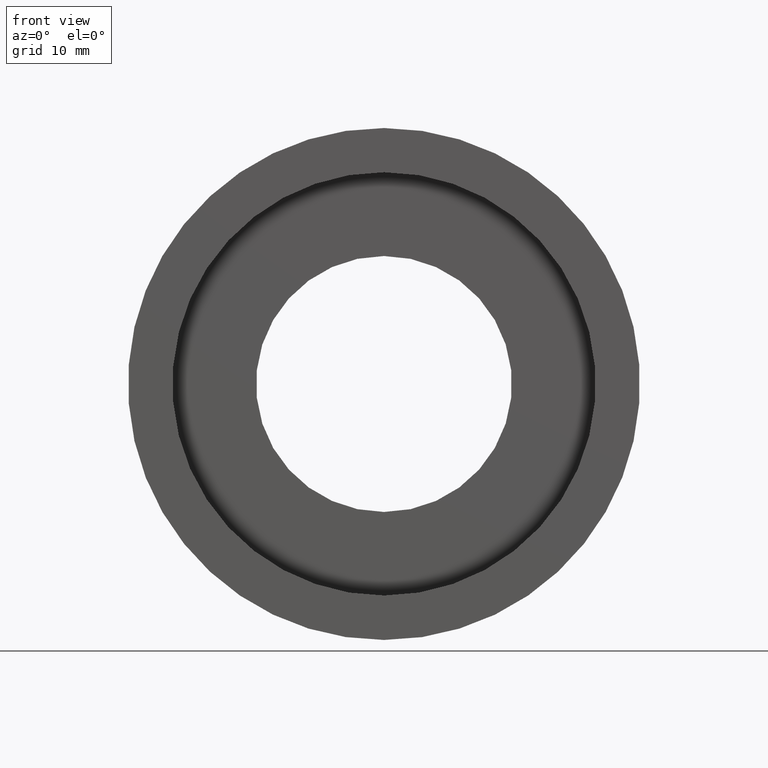
[diagram: clean part render]
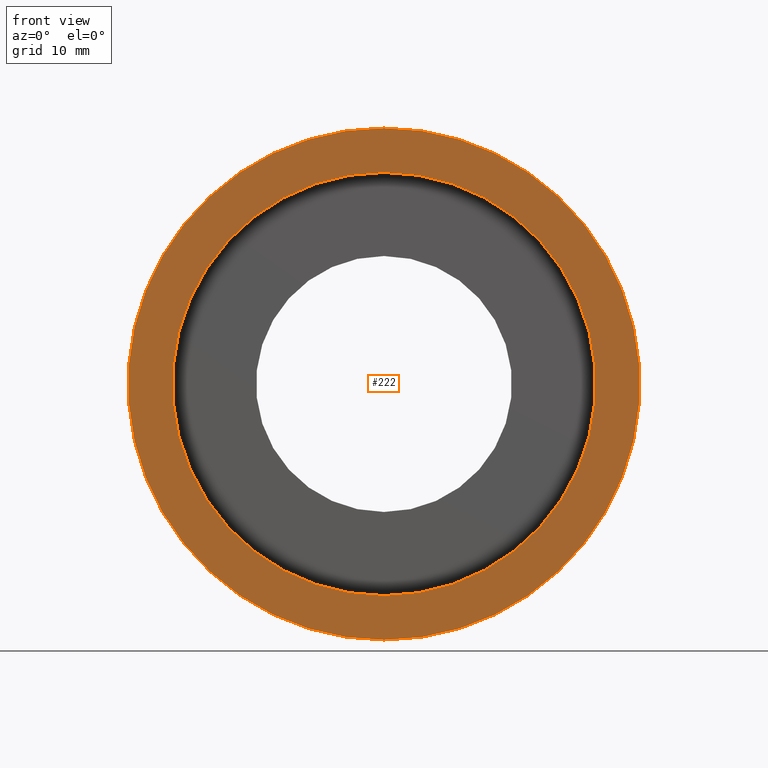
[diagram: same view with one face highlighted and labeled with its STEP entity id]
A machine part, front view. The second image highlights one B-rep face of the part: STEP entity #222.
In plain terms, the highlighted planar face has unit normal (0, 1, 0).
Its self-contained STEP definition (entity closure, byte-faithful):
#4 = DIRECTION ( 'NONE',  ( 0.000000000000000000, 0.000000000000000000, -1.000000000000000000 ) ) ;
#5 = CIRCLE ( 'NONE', #19, 21.00000000000000000 ) ;
#17 = CIRCLE ( 'NONE', #253, 25.39999999999999503 ) ;
#19 = AXIS2_PLACEMENT_3D ( 'NONE', #139, #292, #4 ) ;
#27 = ORIENTED_EDGE ( 'NONE', *, *, #30, .T. ) ;
#30 = EDGE_CURVE ( 'NONE', #66, #152, #42, .T. ) ;
#38 = EDGE_LOOP ( 'NONE', ( #365, #243 ) ) ;
#42 = CIRCLE ( 'NONE', #147, 25.39999999999999503 ) ;
#44 = CARTESIAN_POINT ( 'NONE',  ( 0.000000000000000000, -5.551145924324170024E-17, 0.000000000000000000 ) ) ;
#66 = VERTEX_POINT ( 'NONE', #161 ) ;
#72 = CARTESIAN_POINT ( 'NONE',  ( 0.000000000000000000, 5.976924914303601485E-15, 0.000000000000000000 ) ) ;
#73 = CARTESIAN_POINT ( 'NONE',  ( 0.000000000000000000, -5.551145924324170024E-17, -25.39999999999999503 ) ) ;
#75 = FACE_BOUND ( 'NONE', #38, .T. ) ;
#76 = CIRCLE ( 'NONE', #286, 21.00000000000000000 ) ;
#106 = DIRECTION ( 'NONE',  ( -0.000000000000000000, -1.000000000000000000, -0.000000000000000000 ) ) ;
#125 = EDGE_CURVE ( 'NONE', #152, #66, #17, .T. ) ;
#137 = CARTESIAN_POINT ( 'NONE',  ( 0.000000000000000000, 1.200936128785044448E-14, -21.00000000000000000 ) ) ;
#139 = CARTESIAN_POINT ( 'NONE',  ( 0.000000000000000000, 1.200936128785044448E-14, 0.000000000000000000 ) ) ;
#142 = EDGE_CURVE ( 'NONE', #274, #259, #76, .T. ) ;
#147 = AXIS2_PLACEMENT_3D ( 'NONE', #342, #374, #346 ) ;
#152 = VERTEX_POINT ( 'NONE', #73 ) ;
#161 = CARTESIAN_POINT ( 'NONE',  ( 3.110602869834276471E-15, -5.551145924324170024E-17, 25.39999999999999503 ) ) ;
#167 = DIRECTION ( 'NONE',  ( 0.000000000000000000, -0.000000000000000000, 1.000000000000000000 ) ) ;
#169 = DIRECTION ( 'NONE',  ( 0.000000000000000000, 1.000000000000000000, 0.000000000000000000 ) ) ;
#172 = DIRECTION ( 'NONE',  ( 0.000000000000000000, 0.000000000000000000, -1.000000000000000000 ) ) ;
#199 = CARTESIAN_POINT ( 'NONE',  ( 2.571758278209441661E-15, 1.200936128785044448E-14, 21.00000000000000000 ) ) ;
#222 = ADVANCED_FACE ( 'NONE', ( #75, #354 ), #357, .F. ) ;
#230 = CARTESIAN_POINT ( 'NONE',  ( 0.000000000000000000, 1.200936128785044448E-14, 0.000000000000000000 ) ) ;
#243 = ORIENTED_EDGE ( 'NONE', *, *, #260, .F. ) ;
#253 = AXIS2_PLACEMENT_3D ( 'NONE', #44, #106, #386 ) ;
#259 = VERTEX_POINT ( 'NONE', #199 ) ;
#260 = EDGE_CURVE ( 'NONE', #259, #274, #5, .T. ) ;
#274 = VERTEX_POINT ( 'NONE', #137 ) ;
#286 = AXIS2_PLACEMENT_3D ( 'NONE', #230, #293, #172 ) ;
#292 = DIRECTION ( 'NONE',  ( -0.000000000000000000, -1.000000000000000000, -0.000000000000000000 ) ) ;
#293 = DIRECTION ( 'NONE',  ( -0.000000000000000000, -1.000000000000000000, -0.000000000000000000 ) ) ;
#307 = ORIENTED_EDGE ( 'NONE', *, *, #125, .T. ) ;
#331 = EDGE_LOOP ( 'NONE', ( #307, #27 ) ) ;
#342 = CARTESIAN_POINT ( 'NONE',  ( 0.000000000000000000, -5.551145924324170024E-17, 0.000000000000000000 ) ) ;
#346 = DIRECTION ( 'NONE',  ( 0.000000000000000000, 0.000000000000000000, -1.000000000000000000 ) ) ;
#354 = FACE_OUTER_BOUND ( 'NONE', #331, .T. ) ;
#357 = PLANE ( 'NONE',  #396 ) ;
#365 = ORIENTED_EDGE ( 'NONE', *, *, #142, .F. ) ;
#374 = DIRECTION ( 'NONE',  ( -0.000000000000000000, -1.000000000000000000, -0.000000000000000000 ) ) ;
#386 = DIRECTION ( 'NONE',  ( 0.000000000000000000, 0.000000000000000000, -1.000000000000000000 ) ) ;
#396 = AXIS2_PLACEMENT_3D ( 'NONE', #72, #169, #167 ) ;